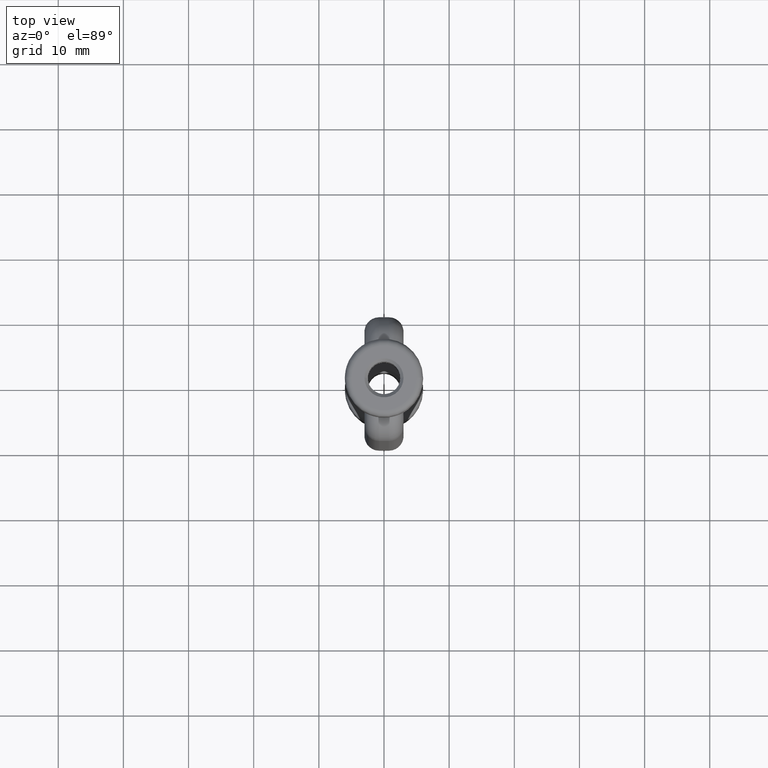
[diagram: clean part render]
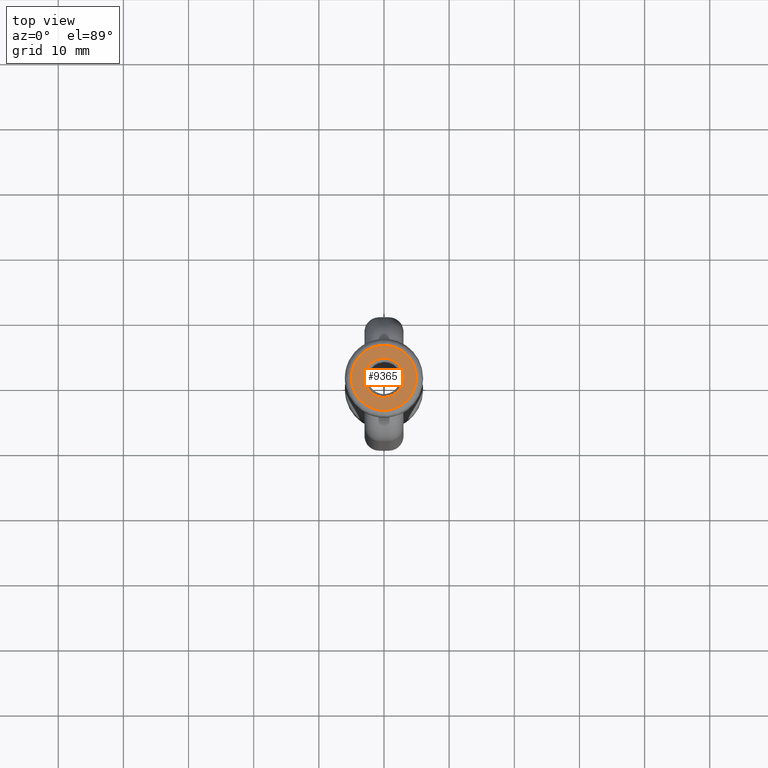
[diagram: same view with one face highlighted and labeled with its STEP entity id]
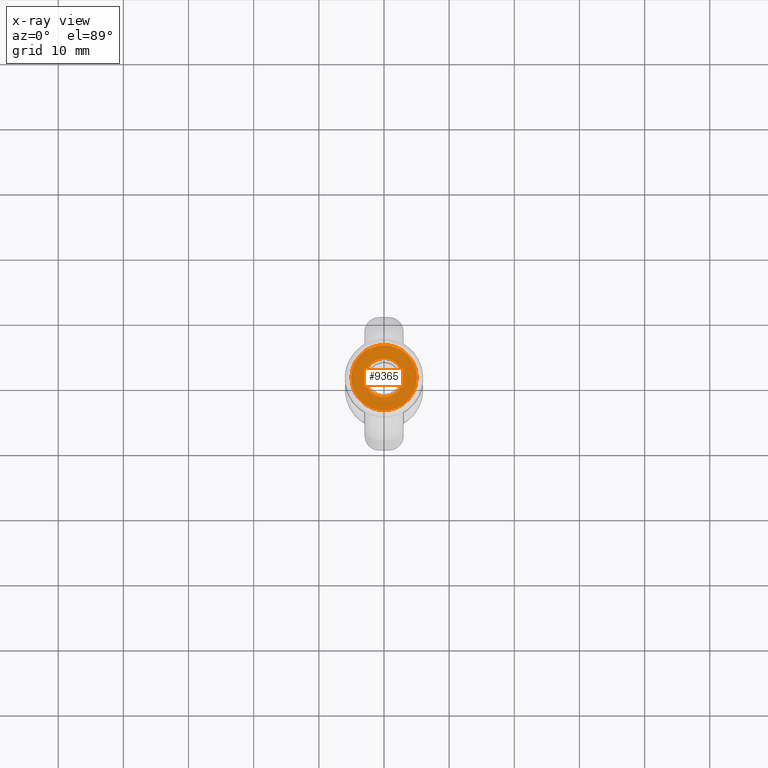
[diagram: x-ray of the same camera — body ghosted, the highlighted face saturated]
A machine part, top view. The second image highlights one B-rep face of the part: STEP entity #9365.
The next image is the same camera in x-ray: the body ghosted, the highlighted face saturated — about 0% of this face is hidden behind the body in this view.
In plain terms, the highlighted planar face has unit normal (0, 0, -1).
Its self-contained STEP definition (entity closure, byte-faithful):
#1408 = ORIENTED_EDGE ( 'NONE', *, *, #8055, .T. ) ;
#2019 = CARTESIAN_POINT ( 'NONE',  ( 0.0000000000000000000, 8.766172331216892400E-017, 54.99999999999999300 ) ) ;
#2504 = AXIS2_PLACEMENT_3D ( 'NONE', #5105, #6468, #10490 ) ;
#2604 = CARTESIAN_POINT ( 'NONE',  ( -3.000000000000016400, 3.673940397442079600E-016, 54.99999999999999300 ) ) ;
#3410 = DIRECTION ( 'NONE',  ( -0.0000000000000000000, -0.0000000000000000000, 1.000000000000000000 ) ) ;
#3601 = FACE_OUTER_BOUND ( 'NONE', #8214, .T. ) ;
#3893 = VERTEX_POINT ( 'NONE', #15799 ) ;
#4035 = DIRECTION ( 'NONE',  ( -1.000000000000000000, 0.0000000000000000000, 0.0000000000000000000 ) ) ;
#5105 = CARTESIAN_POINT ( 'NONE',  ( 0.0000000000000000000, 6.000000000000010700, 54.99999999999999300 ) ) ;
#5189 = AXIS2_PLACEMENT_3D ( 'NONE', #13820, #3410, #11121 ) ;
#6468 = DIRECTION ( 'NONE',  ( 0.0000000000000000000, 0.0000000000000000000, -1.000000000000000000 ) ) ;
#8055 = EDGE_CURVE ( 'NONE', #9784, #11113, #10719, .T. ) ;
#8149 = AXIS2_PLACEMENT_3D ( 'NONE', #11793, #9387, #4035 ) ;
#8214 = EDGE_LOOP ( 'NONE', ( #11802, #14337 ) ) ;
#8475 = CIRCLE ( 'NONE', #5189, 5.000000000000010700 ) ;
#8623 = DIRECTION ( 'NONE',  ( -0.0000000000000000000, -0.0000000000000000000, 1.000000000000000000 ) ) ;
#8793 = DIRECTION ( 'NONE',  ( 0.0000000000000000000, 0.0000000000000000000, -1.000000000000000000 ) ) ;
#9054 = CARTESIAN_POINT ( 'NONE',  ( 3.000000000000016400, 0.0000000000000000000, 54.99999999999999300 ) ) ;
#9365 = ADVANCED_FACE ( 'NONE', ( #9786, #3601 ), #15795, .F. ) ;
#9387 = DIRECTION ( 'NONE',  ( 0.0000000000000000000, 0.0000000000000000000, -1.000000000000000000 ) ) ;
#9784 = VERTEX_POINT ( 'NONE', #9054 ) ;
#9786 = FACE_BOUND ( 'NONE', #13199, .T. ) ;
#10490 = DIRECTION ( 'NONE',  ( -1.000000000000000000, 0.0000000000000000000, -0.0000000000000000000 ) ) ;
#10682 = CARTESIAN_POINT ( 'NONE',  ( -5.000000000000010700, 8.766172331216892400E-017, 54.99999999999999300 ) ) ;
#10719 = CIRCLE ( 'NONE', #13183, 3.000000000000016400 ) ;
#11113 = VERTEX_POINT ( 'NONE', #2604 ) ;
#11121 = DIRECTION ( 'NONE',  ( -1.000000000000000000, 0.0000000000000000000, 0.0000000000000000000 ) ) ;
#11219 = DIRECTION ( 'NONE',  ( -1.000000000000000000, 0.0000000000000000000, 0.0000000000000000000 ) ) ;
#11281 = EDGE_CURVE ( 'NONE', #15912, #3893, #14097, .T. ) ;
#11384 = CARTESIAN_POINT ( 'NONE',  ( 0.0000000000000000000, 0.0000000000000000000, 54.99999999999999300 ) ) ;
#11793 = CARTESIAN_POINT ( 'NONE',  ( 0.0000000000000000000, 0.0000000000000000000, 54.99999999999999300 ) ) ;
#11802 = ORIENTED_EDGE ( 'NONE', *, *, #11281, .T. ) ;
#13020 = EDGE_CURVE ( 'NONE', #11113, #9784, #15915, .T. ) ;
#13183 = AXIS2_PLACEMENT_3D ( 'NONE', #11384, #8793, #11219 ) ;
#13199 = EDGE_LOOP ( 'NONE', ( #1408, #13295 ) ) ;
#13295 = ORIENTED_EDGE ( 'NONE', *, *, #13020, .T. ) ;
#13820 = CARTESIAN_POINT ( 'NONE',  ( 0.0000000000000000000, 8.766172331216892400E-017, 54.99999999999999300 ) ) ;
#14097 = CIRCLE ( 'NONE', #16523, 5.000000000000010700 ) ;
#14337 = ORIENTED_EDGE ( 'NONE', *, *, #14727, .T. ) ;
#14727 = EDGE_CURVE ( 'NONE', #3893, #15912, #8475, .T. ) ;
#15156 = DIRECTION ( 'NONE',  ( -1.000000000000000000, 0.0000000000000000000, 0.0000000000000000000 ) ) ;
#15795 = PLANE ( 'NONE',  #2504 ) ;
#15799 = CARTESIAN_POINT ( 'NONE',  ( 5.000000000000010700, 7.612174628432143800E-016, 54.99999999999999300 ) ) ;
#15912 = VERTEX_POINT ( 'NONE', #10682 ) ;
#15915 = CIRCLE ( 'NONE', #8149, 3.000000000000016400 ) ;
#16523 = AXIS2_PLACEMENT_3D ( 'NONE', #2019, #8623, #15156 ) ;